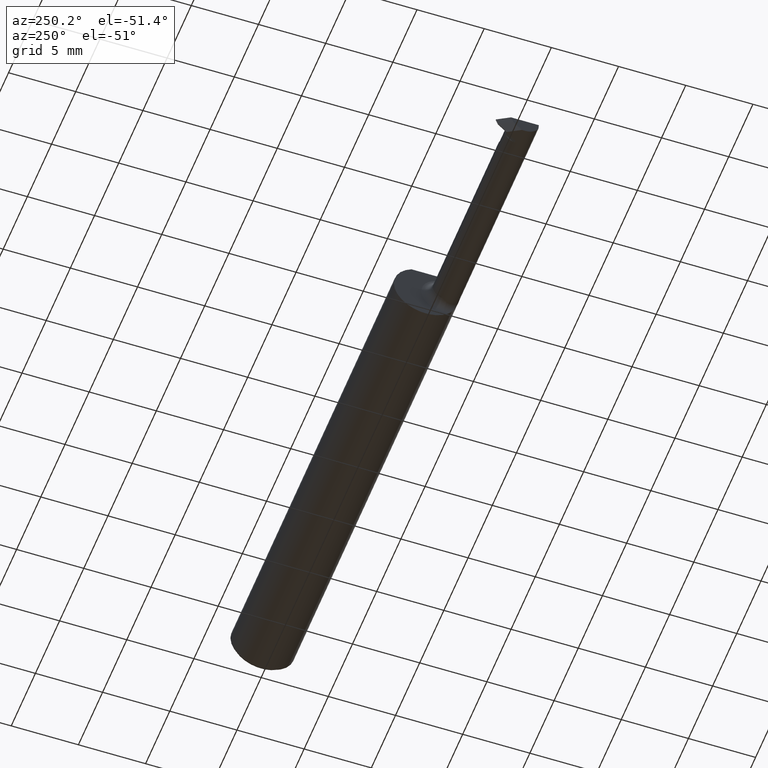
[diagram: clean part render]
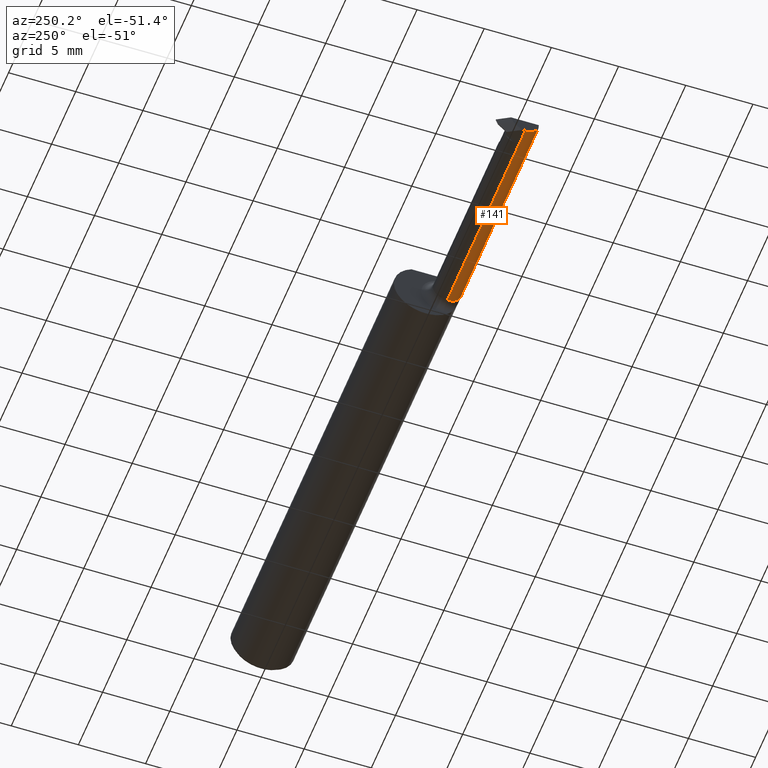
[diagram: same view with one face highlighted and labeled with its STEP entity id]
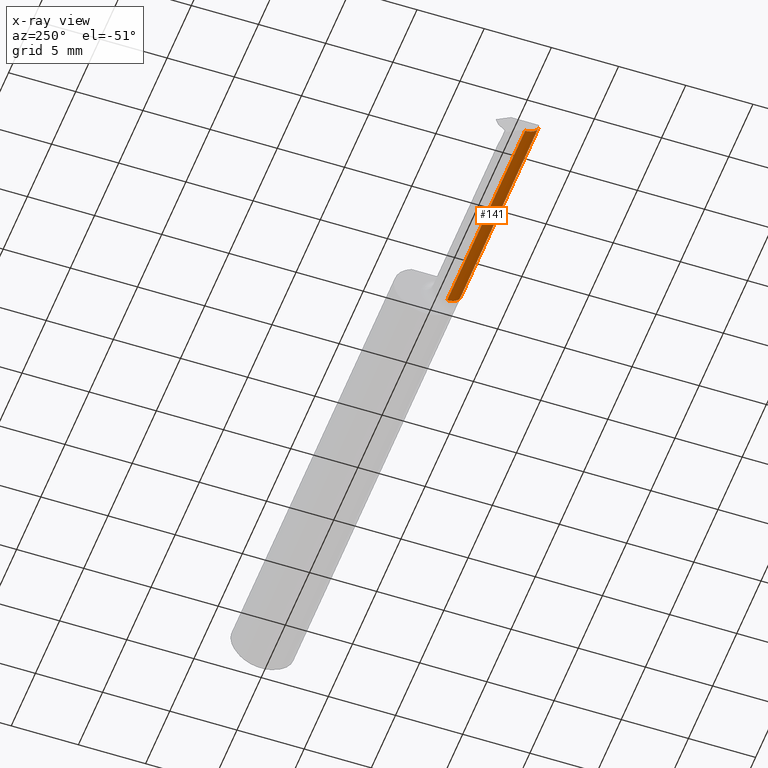
[diagram: x-ray of the same camera — body ghosted, the highlighted face saturated]
A machine part, auxiliary view. The second image highlights one B-rep face of the part: STEP entity #141.
The next image is the same camera in x-ray: the body ghosted, the highlighted face saturated — about 0% of this face is hidden behind the body in this view.
In plain terms, the highlighted cylindrical surface (edge-blend (fillet) strip) has radius 1.0668 mm, axis along (-1, -0, -0).
Its self-contained STEP definition (entity closure, byte-faithful):
#6 = DIRECTION ( 'NONE',  ( 0.000000000000000000, 0.000000000000000000, 1.000000000000000000 ) ) ;
#46 = CARTESIAN_POINT ( 'NONE',  ( -2.000000000000000000, -0.09207014925373151193, -0.01685371224376489355 ) ) ;
#74 = VECTOR ( 'NONE', #562, 39.37007874015748143 ) ;
#102 = ORIENTED_EDGE ( 'NONE', *, *, #707, .F. ) ;
#141 = ADVANCED_FACE ( 'NONE', ( #506 ), #273, .T. ) ;
#156 = CARTESIAN_POINT ( 'NONE',  ( -2.000000000000000000, -0.05360000000000015447, -0.04199999999999997485 ) ) ;
#157 = CARTESIAN_POINT ( 'NONE',  ( -1.364999999999999769, -0.05360000000000016140, 0.000000000000000000 ) ) ;
#200 = CARTESIAN_POINT ( 'NONE',  ( -2.000000000000000000, -0.05360000000000015447, -0.04200000000000003730 ) ) ;
#238 = ORIENTED_EDGE ( 'NONE', *, *, #926, .F. ) ;
#266 = EDGE_CURVE ( 'NONE', #975, #764, #583, .T. ) ;
#267 = VECTOR ( 'NONE', #518, 39.37007874015748143 ) ;
#273 = CYLINDRICAL_SURFACE ( 'NONE', #349, 0.04200000000000003730 ) ;
#290 = CARTESIAN_POINT ( 'NONE',  ( -2.000000000000000000, -0.05360000000000016140, 0.000000000000000000 ) ) ;
#306 = CARTESIAN_POINT ( 'NONE',  ( -1.951215390309173348, -0.05360000000000015447, -0.04199999999999997485 ) ) ;
#349 = AXIS2_PLACEMENT_3D ( 'NONE', #663, #592, #839 ) ;
#356 = ORIENTED_EDGE ( 'NONE', *, *, #266, .F. ) ;
#357 = CARTESIAN_POINT ( 'NONE',  ( -1.364999999999999769, -0.05360000000000015447, -0.04200000000000012751 ) ) ;
#377 = CARTESIAN_POINT ( 'NONE',  ( -1.364999999999999769, -0.09207014925373140091, -0.01685371224376553193 ) ) ;
#416 = DIRECTION ( 'NONE',  ( -1.000000000000000000, -1.553500558300393113E-17, -0.000000000000000000 ) ) ;
#433 = VERTEX_POINT ( 'NONE', #377 ) ;
#442 = VECTOR ( 'NONE', #416, 39.37007874015748143 ) ;
#506 = FACE_OUTER_BOUND ( 'NONE', #952, .T. ) ;
#518 = DIRECTION ( 'NONE',  ( -1.000000000000000000, -0.000000000000000000, -0.000000000000000000 ) ) ;
#530 = ORIENTED_EDGE ( 'NONE', *, *, #725, .T. ) ;
#556 = ORIENTED_EDGE ( 'NONE', *, *, #601, .T. ) ;
#562 = DIRECTION ( 'NONE',  ( 1.000000000000000000, 0.000000000000000000, 0.000000000000000000 ) ) ;
#583 = LINE ( 'NONE', #595, #442 ) ;
#592 = DIRECTION ( 'NONE',  ( -1.000000000000000000, -0.000000000000000000, -0.000000000000000000 ) ) ;
#595 = CARTESIAN_POINT ( 'NONE',  ( -1.949999999999999956, -0.05360000000000015447, -0.04199999999999997485 ) ) ;
#601 = EDGE_CURVE ( 'NONE', #700, #433, #917, .T. ) ;
#663 = CARTESIAN_POINT ( 'NONE',  ( -2.000000000000000000, -0.05360000000000016140, 0.000000000000000000 ) ) ;
#670 = AXIS2_PLACEMENT_3D ( 'NONE', #290, #929, #776 ) ;
#690 = VERTEX_POINT ( 'NONE', #46 ) ;
#700 = VERTEX_POINT ( 'NONE', #357 ) ;
#707 = EDGE_CURVE ( 'NONE', #700, #975, #989, .T. ) ;
#714 = DIRECTION ( 'NONE',  ( -1.000000000000000000, -0.000000000000000000, -0.000000000000000000 ) ) ;
#725 = EDGE_CURVE ( 'NONE', #690, #764, #848, .T. ) ;
#764 = VERTEX_POINT ( 'NONE', #156 ) ;
#776 = DIRECTION ( 'NONE',  ( 0.000000000000000000, -1.000000000000000000, 0.000000000000000000 ) ) ;
#839 = DIRECTION ( 'NONE',  ( 0.000000000000000000, 0.000000000000000000, 1.000000000000000000 ) ) ;
#848 = CIRCLE ( 'NONE', #670, 0.04199999999999997485 ) ;
#863 = AXIS2_PLACEMENT_3D ( 'NONE', #157, #714, #6 ) ;
#877 = CARTESIAN_POINT ( 'NONE',  ( -1.658107695154586558, -0.09207014925373133152, -0.01685371224376547294 ) ) ;
#917 = CIRCLE ( 'NONE', #863, 0.04200000000000012751 ) ;
#926 = EDGE_CURVE ( 'NONE', #690, #433, #967, .T. ) ;
#929 = DIRECTION ( 'NONE',  ( 1.000000000000000000, 1.553500558300393113E-17, -0.000000000000000000 ) ) ;
#952 = EDGE_LOOP ( 'NONE', ( #102, #556, #238, #530, #356 ) ) ;
#967 = LINE ( 'NONE', #877, #74 ) ;
#975 = VERTEX_POINT ( 'NONE', #306 ) ;
#989 = LINE ( 'NONE', #200, #267 ) ;